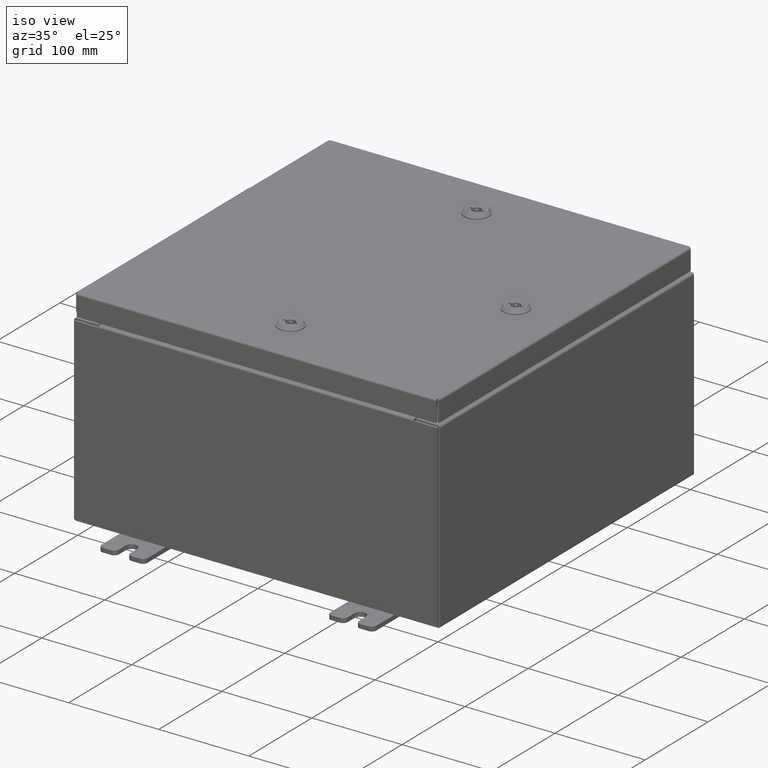
[diagram: clean part render]
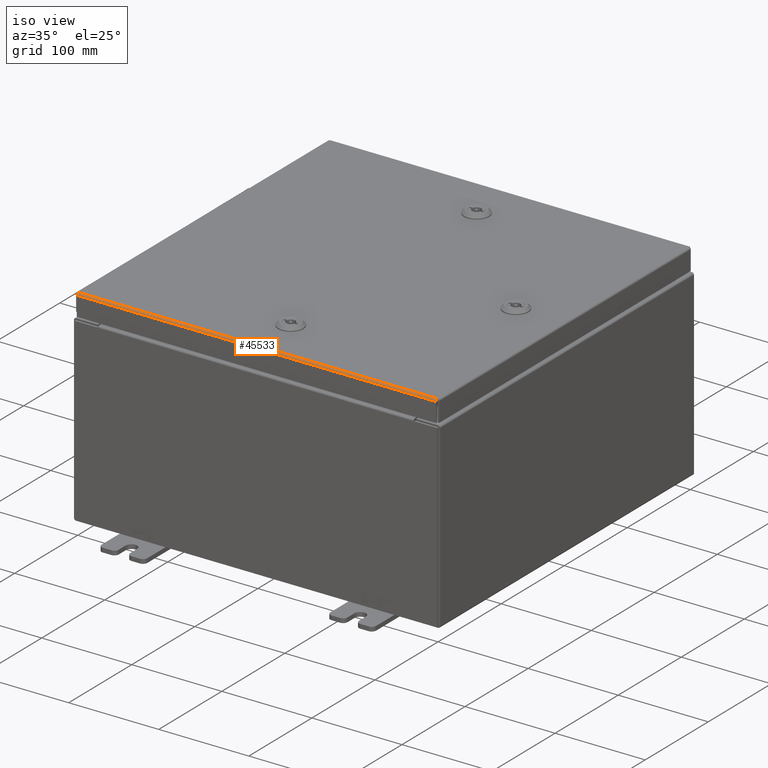
[diagram: same view with one face highlighted and labeled with its STEP entity id]
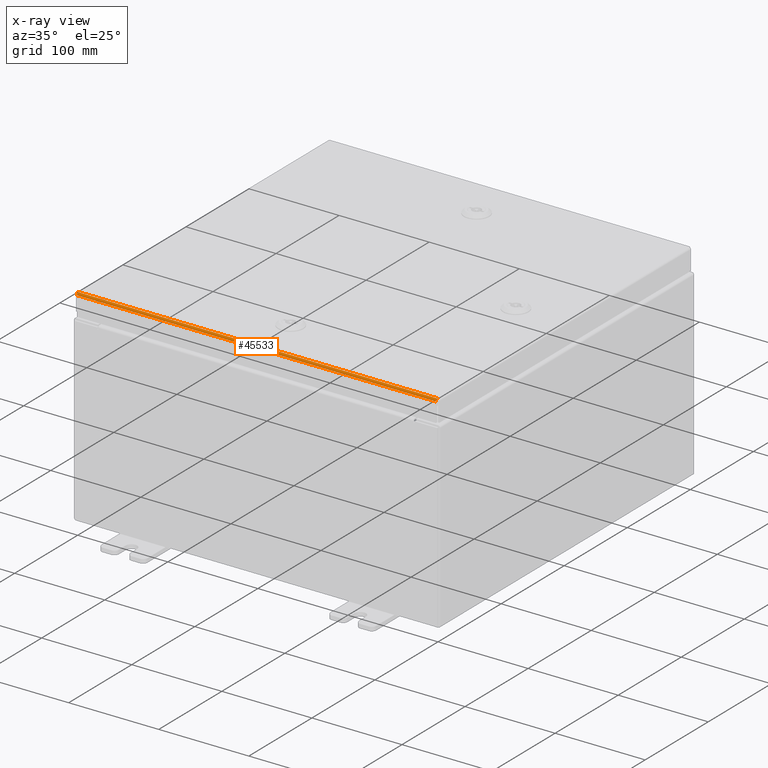
[diagram: x-ray of the same camera — body ghosted, the highlighted face saturated]
A machine part, iso view. The second image highlights one B-rep face of the part: STEP entity #45533.
The next image is the same camera in x-ray: the body ghosted, the highlighted face saturated — about 0% of this face is hidden behind the body in this view.
In plain terms, the highlighted cylindrical surface (edge-blend (fillet) strip) has radius 2.2276 mm, axis along (-1, 0, 0).
Its self-contained STEP definition (entity closure, byte-faithful):
#1174 = CARTESIAN_POINT ( 'NONE',  ( 7.849324110156780800, -7.903695747341801700, -0.01756921792167975800 ) ) ;
#2547 = VERTEX_POINT ( 'NONE', #45135 ) ;
#3379 = CARTESIAN_POINT ( 'NONE',  ( -7.849324110156779900, -7.903695747341800800, -0.01756921792167976200 ) ) ;
#6021 = CARTESIAN_POINT ( 'NONE',  ( 7.849038576250846300, -7.926431066258668800, -0.04353261542147220100 ) ) ;
#8266 = CARTESIAN_POINT ( 'NONE',  ( -7.849609644062711700, -7.872755289458309500, -0.002282596256188945500 ) ) ;
#8272 = AXIS2_PLACEMENT_3D ( 'NONE', #17979, #61214, #46834 ) ;
#10774 = FACE_OUTER_BOUND ( 'NONE', #37202, .T. ) ;
#10888 = CARTESIAN_POINT ( 'NONE',  ( 7.848753042344914600, -7.937500000000000000, -0.07622009684500730100 ) ) ;
#13133 = CARTESIAN_POINT ( 'NONE',  ( -7.849800000000000100, -7.849800000000000100, -2.219626494852214000E-016 ) ) ;
#16304 = CARTESIAN_POINT ( 'NONE',  ( -7.849800000000000100, -7.849800000000000100, -2.219626494852214000E-016 ) ) ;
#17558 = CARTESIAN_POINT ( 'NONE',  ( 7.937500000000000000, -7.937500000000000000, -0.08769999999999997200 ) ) ;
#17800 = CARTESIAN_POINT ( 'NONE',  ( -7.848753042344911000, -7.937499999999999100, -0.07622009684500727400 ) ) ;
#17979 = CARTESIAN_POINT ( 'NONE',  ( -7.849800000000000100, -7.849800000000000100, -0.08770000000000031900 ) ) ;
#18434 = EDGE_CURVE ( 'NONE', #21809, #2547, #36682, .T. ) ;
#21809 = VERTEX_POINT ( 'NONE', #35028 ) ;
#21872 = CARTESIAN_POINT ( 'NONE',  ( -7.849800000000000100, -7.849800000000000100, -2.219626494852214000E-016 ) ) ;
#23269 = B_SPLINE_CURVE_WITH_KNOTS ( 'NONE', 3,
 ( #53066, #33339, #59036, #30084, #1174, #34932, #6021, #39767, #10888, #44635 ),
 .UNSPECIFIED., .F., .F.,
 ( 4, 2, 2, 2, 4 ),
 ( 0.0000000000000000000, 0.2500000000000000000, 0.5000000000000000000, 0.7500000000000000000, 1.000000000000000000 ),
 .UNSPECIFIED. ) ;
#23691 = ORIENTED_EDGE ( 'NONE', *, *, #51023, .F. ) ;
#24147 = CARTESIAN_POINT ( 'NONE',  ( 7.849800000000000100, -7.849800000000000100, -2.219626494852214000E-016 ) ) ;
#27444 = CARTESIAN_POINT ( 'NONE',  ( -7.848848220313558800, -7.935217403743812300, -0.06474471054169114700 ) ) ;
#29482 = VERTEX_POINT ( 'NONE', #24147 ) ;
#30084 = CARTESIAN_POINT ( 'NONE',  ( 7.849419288125424100, -7.893967384578527200, -0.01106893374133177300 ) ) ;
#31535 = DIRECTION ( 'NONE',  ( 1.000000000000000000, -0.0000000000000000000, -0.0000000000000000000 ) ) ;
#32312 = CARTESIAN_POINT ( 'NONE',  ( -7.849133754219491400, -7.919930782078321100, -0.03380425265820006400 ) ) ;
#33339 = CARTESIAN_POINT ( 'NONE',  ( 7.849704822031355900, -7.861279903154991400, -2.229964298539175300E-016 ) ) ;
#34924 = CYLINDRICAL_SURFACE ( 'NONE', #8272, 0.08770000000000026400 ) ;
#34932 = CARTESIAN_POINT ( 'NONE',  ( 7.849133754219493200, -7.919930782078321100, -0.03380425265820006400 ) ) ;
#35028 = CARTESIAN_POINT ( 'NONE',  ( -7.848657864376269400, -7.937500000000000000, -0.08769999999999997200 ) ) ;
#36682 = LINE ( 'NONE', #17558, #49540 ) ;
#37124 = VERTEX_POINT ( 'NONE', #16304 ) ;
#37132 = CARTESIAN_POINT ( 'NONE',  ( -7.849419288125424100, -7.893967384578529000, -0.01106893374133177300 ) ) ;
#37202 = EDGE_LOOP ( 'NONE', ( #57670, #42908, #42644, #23691 ) ) ;
#39767 = CARTESIAN_POINT ( 'NONE',  ( 7.848848220313557900, -7.935217403743813200, -0.06474471054169114700 ) ) ;
#40910 = EDGE_CURVE ( 'NONE', #21809, #37124, #59518, .T. ) ;
#41996 = CARTESIAN_POINT ( 'NONE',  ( -7.849704822031356800, -7.861279903154993100, -2.224295180388261000E-016 ) ) ;
#42644 = ORIENTED_EDGE ( 'NONE', *, *, #18434, .T. ) ;
#42908 = ORIENTED_EDGE ( 'NONE', *, *, #40910, .F. ) ;
#43344 = EDGE_CURVE ( 'NONE', #37124, #29482, #62426, .T. ) ;
#44635 = CARTESIAN_POINT ( 'NONE',  ( 7.848657864376269400, -7.937500000000000000, -0.08769999999999997200 ) ) ;
#45135 = CARTESIAN_POINT ( 'NONE',  ( 7.848657864376269400, -7.937500000000000000, -0.08769999999999997200 ) ) ;
#45533 = ADVANCED_FACE ( 'NONE', ( #10774 ), #34924, .T. ) ;
#46411 = DIRECTION ( 'NONE',  ( 1.000000000000000000, 4.575808254895093900E-031, -1.755275756154839100E-045 ) ) ;
#46834 = DIRECTION ( 'NONE',  ( 0.0000000000000000000, -1.000000000000000000, 3.893740013774593800E-015 ) ) ;
#49540 = VECTOR ( 'NONE', #46411, 39.37007874015748100 ) ;
#49573 = VECTOR ( 'NONE', #31535, 39.37007874015748100 ) ;
#51023 = EDGE_CURVE ( 'NONE', #29482, #2547, #23269, .T. ) ;
#51497 = CARTESIAN_POINT ( 'NONE',  ( -7.848657864376269400, -7.937500000000000000, -0.08769999999999997200 ) ) ;
#53066 = CARTESIAN_POINT ( 'NONE',  ( 7.849800000000000100, -7.849800000000000100, -2.219626494852214000E-016 ) ) ;
#57670 = ORIENTED_EDGE ( 'NONE', *, *, #43344, .F. ) ;
#59036 = CARTESIAN_POINT ( 'NONE',  ( 7.849609644062715200, -7.872755289458310400, -0.002282596256188945100 ) ) ;
#59518 = B_SPLINE_CURVE_WITH_KNOTS ( 'NONE', 3,
 ( #51497, #17800, #27444, #61248, #32312, #3379, #37132, #8266, #41996, #13133 ),
 .UNSPECIFIED., .F., .F.,
 ( 4, 2, 2, 2, 4 ),
 ( 0.0000000000000000000, 0.2500000000000000000, 0.5000000000000000000, 0.7500000000000000000, 1.000000000000000000 ),
 .UNSPECIFIED. ) ;
#61214 = DIRECTION ( 'NONE',  ( -1.000000000000000000, 0.0000000000000000000, 0.0000000000000000000 ) ) ;
#61248 = CARTESIAN_POINT ( 'NONE',  ( -7.849038576250843700, -7.926431066258667900, -0.04353261542147220100 ) ) ;
#62426 = LINE ( 'NONE', #21872, #49573 ) ;